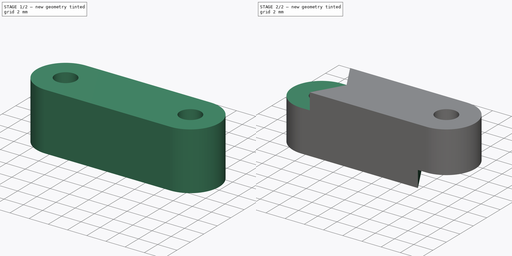
[diagram: build sequence overview — one tinted view per stage of 2, left to right]
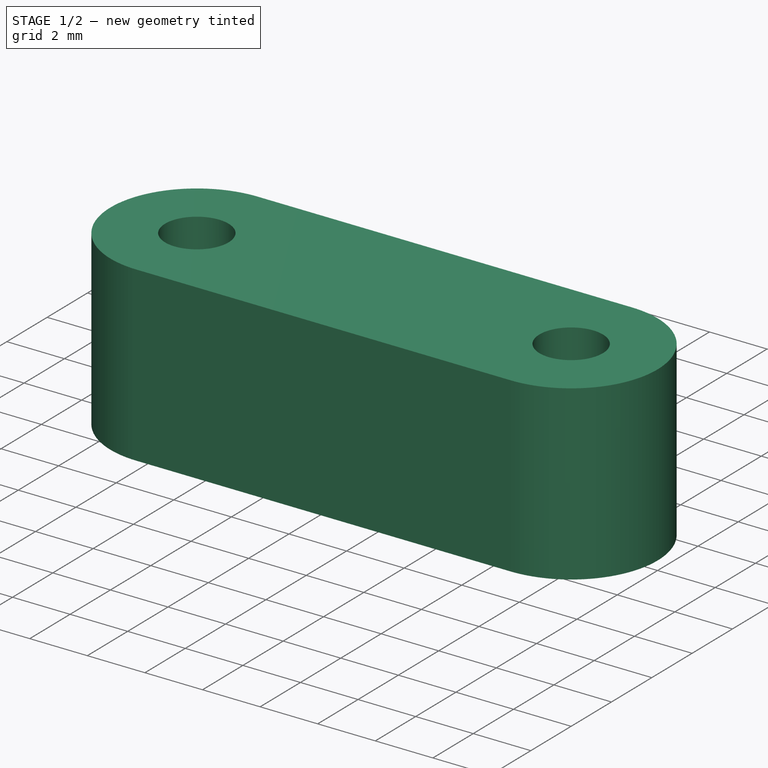
[diagram: stage 1 of 2 — iso view after this stage's code; geometry added in this stage tinted green]
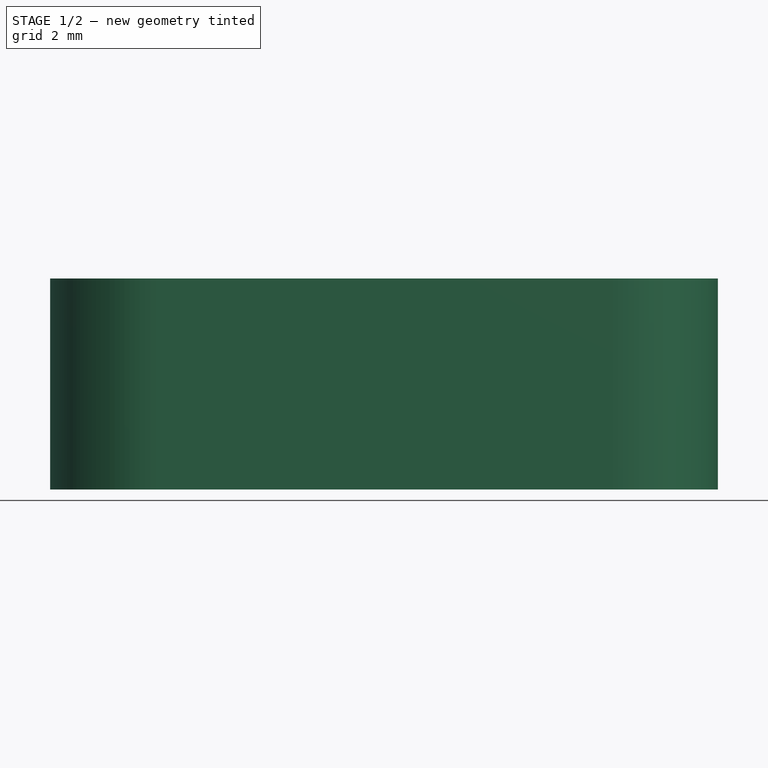
[diagram: stage 1 of 2 — front view after this stage's code; geometry added in this stage tinted green]
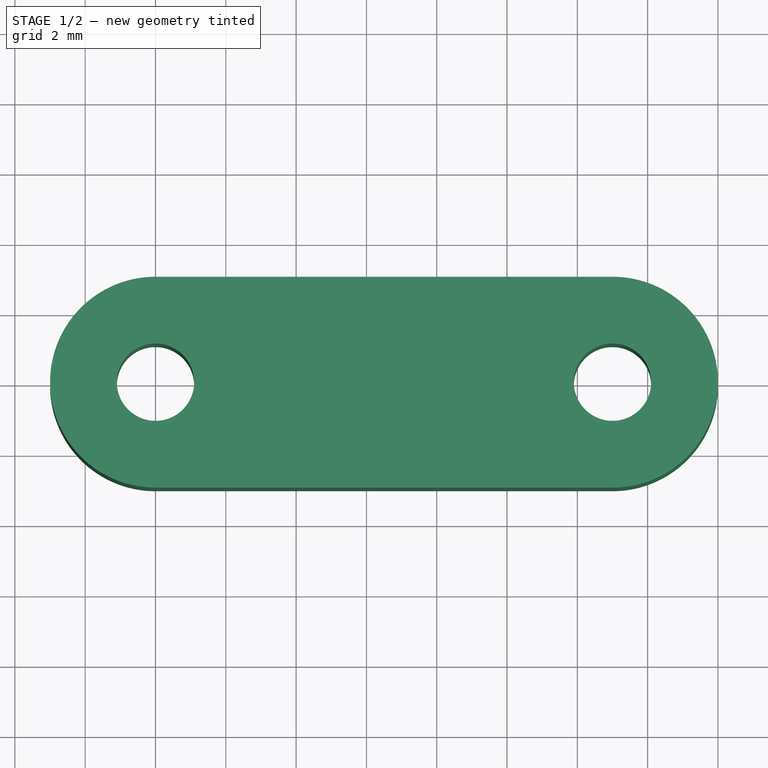
[diagram: stage 1 of 2 — top view after this stage's code; geometry added in this stage tinted green]
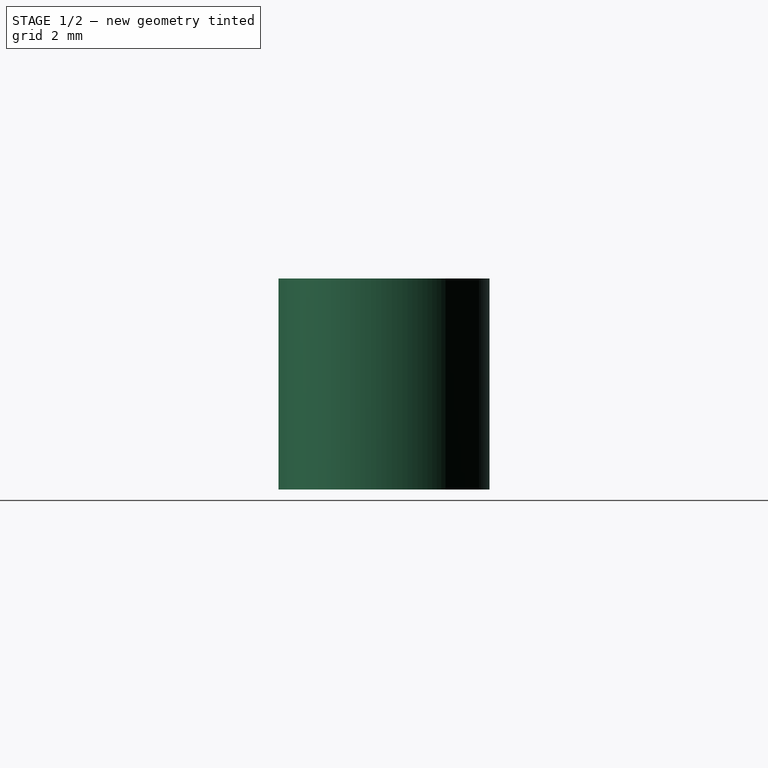
[diagram: stage 1 of 2 — right view after this stage's code; geometry added in this stage tinted green]
FCSTD DOCUMENT
Label: newArm
License: CC-BY 3.0
LicenseURL: http://creativecommons.org/licenses/by/3.0/
objects: Sketcher::SketchObject×5, PartDesign::Pocket×3, PartDesign::Pad×1
note: 13 computed .brp shape members not serialized (recipe doc carries the construction recipe); baked Part::Feature solids carry a one-line shape summary decoded from their .brp

FEATURE [Sketcher::SketchObject] Sketch
  sketch-geometry (4):
    g0: LineSegment StartX=0 StartY=3 StartZ=0 EndX=13 EndY=3 EndZ=0
    g1: LineSegment StartX=0 StartY=-3 StartZ=0 EndX=13 EndY=-3 EndZ=0
    g2: ArcOfCircle CenterX=13 CenterY=0 CenterZ=0 NormalX=0 NormalY=0 NormalZ=1 Radius=3 StartAngle=4.71239 EndAngle=7.85398
    g3: ArcOfCircle CenterX=0 CenterY=0 CenterZ=0 NormalX=0 NormalY=0 NormalZ=1 Radius=3 StartAngle=1.5708 EndAngle=4.71239
  constraints (14):
    c: Horizontal(g0)
    c: PointOnObject(g1,g-2)
    c: Horizontal(g1)
    c: PointOnObject(g0,g-2)
    c: Equal(g1,g0)
    c: DistanceX(g-1,g1) = 13
    c: DistanceY(g-1,g1) = -3
    c: DistanceY(g-1,g0) = 3
    c: Coincident(g2,g1)
    c: Coincident(g2,g0)
    c: Coincident(g3,g-1)
    c: Coincident(g3,g0)
    c: Coincident(g1,g3)
    c: Equal(g3,g2)
FEATURE [PartDesign::Pad] Pad
  Length = 6
  Length2 = 100
  Sketch = -> Sketch
  Type = 0
FEATURE [Sketcher::SketchObject] Sketch001
  Placement = pos=(0,0,6) rot=(0,0,1;0rad)
  Support = -> Pad [Face6]
FEATURE [Sketcher::SketchObject] Sketch002
  Placement = pos=(0,0,6) rot=(0,0,1;0rad)
  Support = -> Pad [Face6]
  sketch-geometry (2):
    g0: Circle CenterX=0 CenterY=0 CenterZ=0 NormalX=0 NormalY=0 NormalZ=1 Radius=1.1
    g1: Circle CenterX=13 CenterY=0 CenterZ=0 NormalX=0 NormalY=0 NormalZ=1 Radius=1.1
  constraints (5):
    c: Coincident(g0,g-1)
    c: Equal(g0,g1)
    c: PointOnObject(g1,g-1)
    c: Radius(g0) = 1.1
    c: DistanceX(g-1,g1) = 13
FEATURE [PartDesign::Pocket] Pocket
  Length = 5
  Sketch = -> Sketch002
  Type = 1
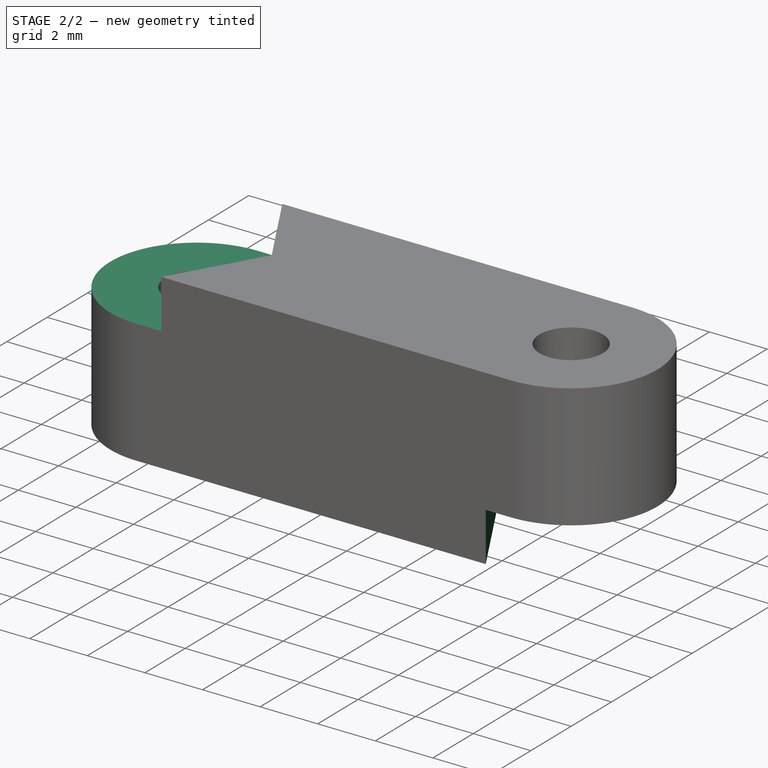
[diagram: stage 2 of 2 — iso view after this stage's code; geometry added in this stage tinted green]
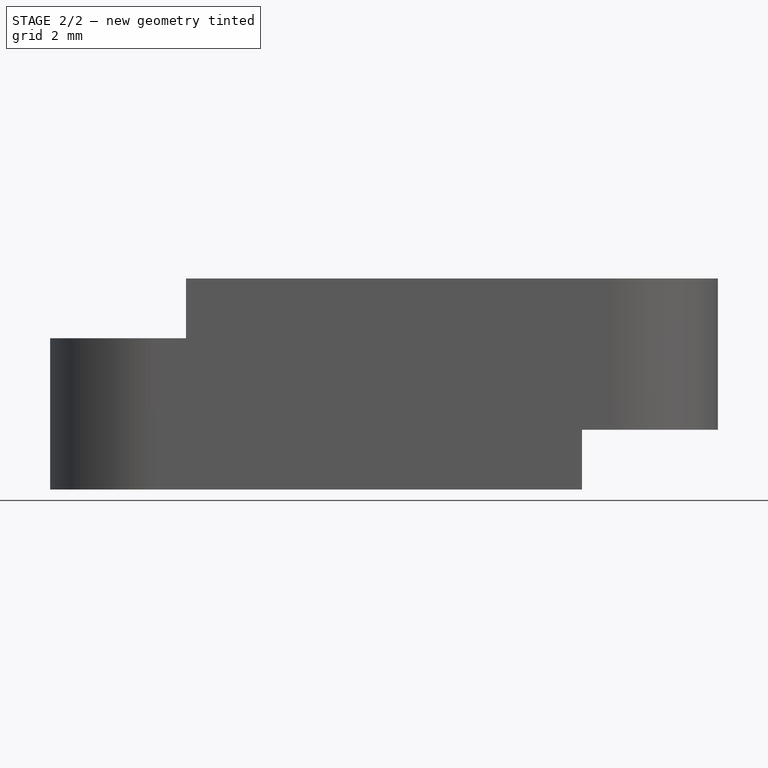
[diagram: stage 2 of 2 — front view after this stage's code; geometry added in this stage tinted green]
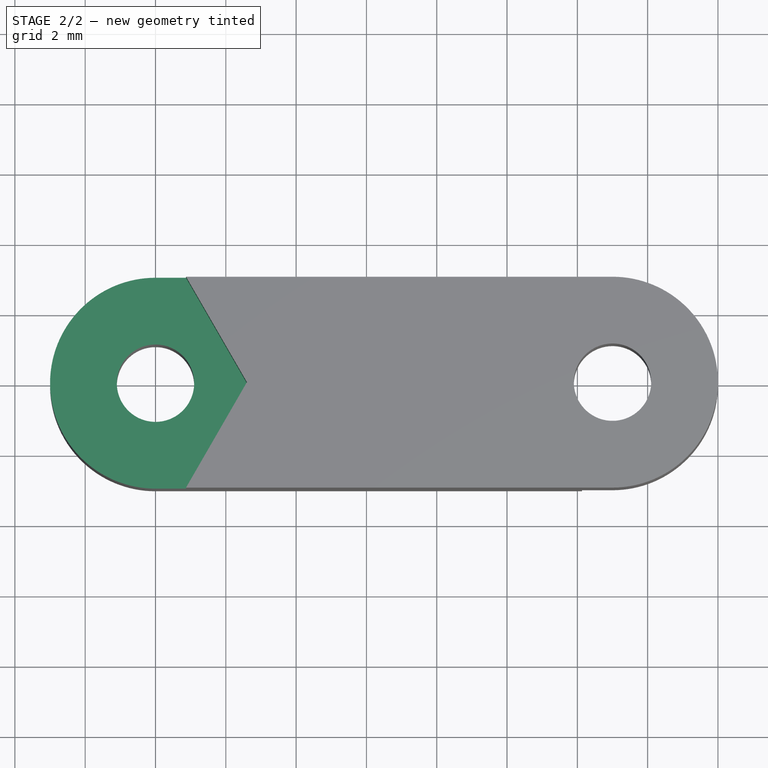
[diagram: stage 2 of 2 — top view after this stage's code; geometry added in this stage tinted green]
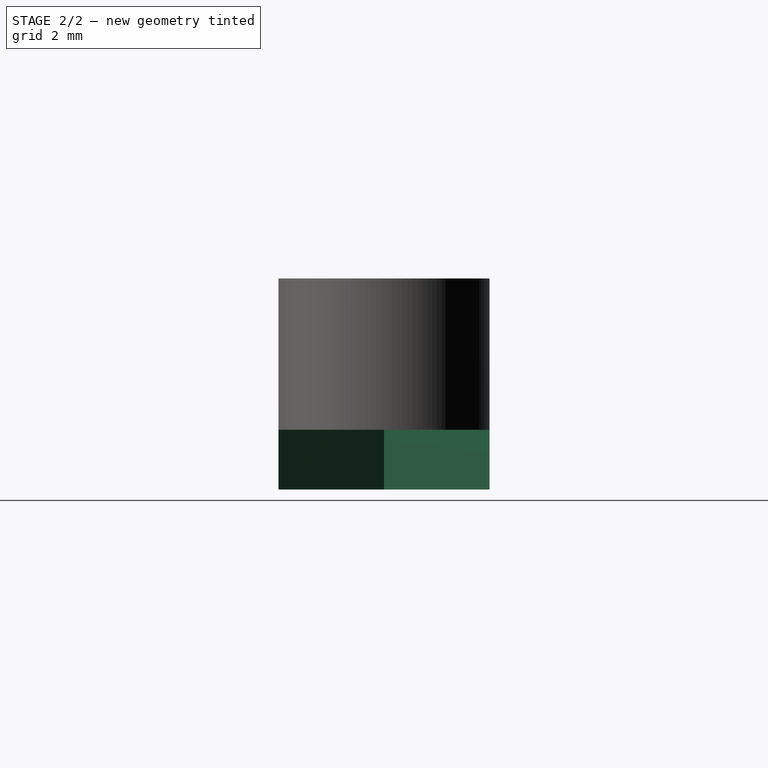
[diagram: stage 2 of 2 — right view after this stage's code; geometry added in this stage tinted green]
FEATURE [Sketcher::SketchObject] Sketch003
  Placement = pos=(0,0,6) rot=(0,0,1;0rad)
  Support = -> Pocket [Face5]
  sketch-geometry (5):
    g0: LineSegment StartX=2.6 StartY=0 StartZ=0 EndX=0.100002 EndY=-4.33013 EndZ=0
    g1: LineSegment StartX=0.100002 StartY=-4.33013 StartZ=0 EndX=-3.9 EndY=-4.33013 EndZ=0
    g2: LineSegment StartX=-3.9 StartY=-4.33013 StartZ=0 EndX=-3.9 EndY=4.33013 EndZ=0
    g3: LineSegment StartX=-3.9 StartY=4.33013 StartZ=0 EndX=0.0999976 EndY=4.33013 EndZ=0
    g4: LineSegment StartX=0.0999976 StartY=4.33013 StartZ=0 EndX=2.6 EndY=0 EndZ=0
  constraints (16):
    c: PointOnObject(g0,g-1)
    c: Coincident(g0,g1)
    c: Horizontal(g1)
    c: Coincident(g1,g2)
    c: Vertical(g2)
    c: Coincident(g2,g3)
    c: Horizontal(g3)
    c: Coincident(g3,g4)
    c: Coincident(g4,g0)
    c: Angle(g4,g0) = 2.0944
    c: Angle(g-1,g0) = 1.0472
    c: Equal(g4,g0)
    c: Distance(g0,g3) = 5
    c: Equal(g3,g1)
    c: DistanceX(g0,g1) = -4
    c: DistanceX(g-1,g0) = 2.6
FEATURE [PartDesign::Pocket] Pocket001
  Length = 1.7
  Sketch = -> Sketch003
  Type = 0
FEATURE [Sketcher::SketchObject] Sketch004
  Placement = pos=(0,0,0) rot=(1,0,0;3.14159rad)
  Support = -> Pocket001 [Face4]
  sketch-geometry (5):
    g0: LineSegment StartX=10.4 StartY=0 StartZ=0 EndX=12.6789 EndY=3.94718 EndZ=0
    g1: LineSegment StartX=12.6789 StartY=3.94718 StartZ=0 EndX=16.6789 EndY=3.94718 EndZ=0
    g2: LineSegment StartX=16.6789 StartY=3.94718 StartZ=0 EndX=16.6789 EndY=-3.94717 EndZ=0
    g3: LineSegment StartX=16.6789 StartY=-3.94717 StartZ=0 EndX=12.6789 EndY=-3.94717 EndZ=0
    g4: LineSegment StartX=12.6789 StartY=-3.94717 StartZ=0 EndX=10.4 EndY=0 EndZ=0
  constraints (15):
    c: PointOnObject(g0,g-1)
    c: Coincident(g0,g1)
    c: Horizontal(g1)
    c: Coincident(g1,g2)
    c: Vertical(g2)
    c: Coincident(g2,g3)
    c: Horizontal(g3)
    c: Coincident(g3,g4)
    c: Coincident(g4,g0)
    c: Angle(g4,g0) = 2.0944
    c: Angle(g0,g-1) = 2.0944
    c: Equal(g4,g0)
    c: DistanceX(g1) = 4
    c: DistanceY(g2) = -7.89435
    c: DistanceX(g-1,g0) = 10.4
FEATURE [PartDesign::Pocket] Pocket002
  Length = 1.7
  Sketch = -> Sketch004
  Type = 0
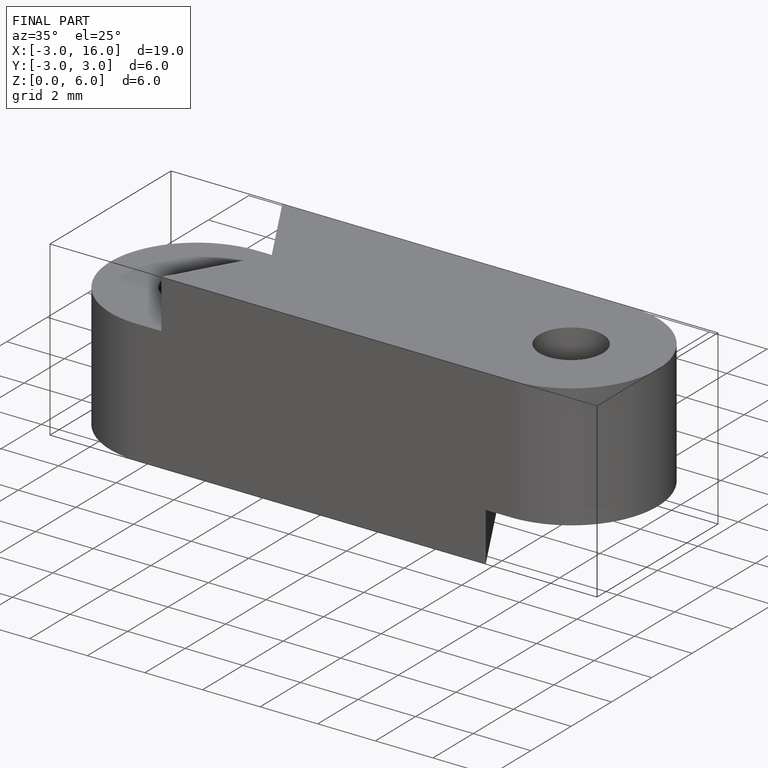
[diagram: finished part — iso view with bounding-box wireframe]
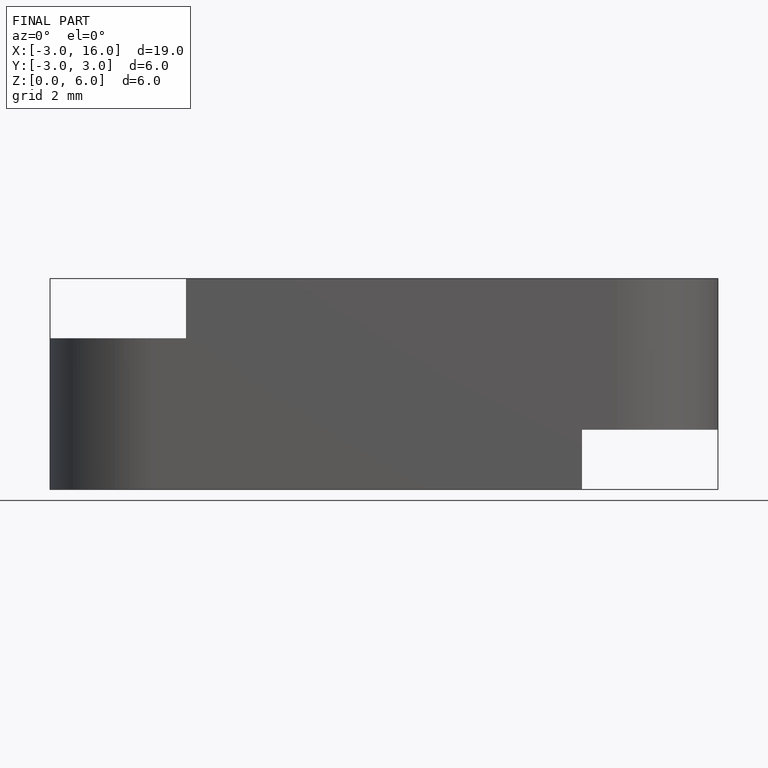
[diagram: finished part — front view with bounding-box wireframe]
